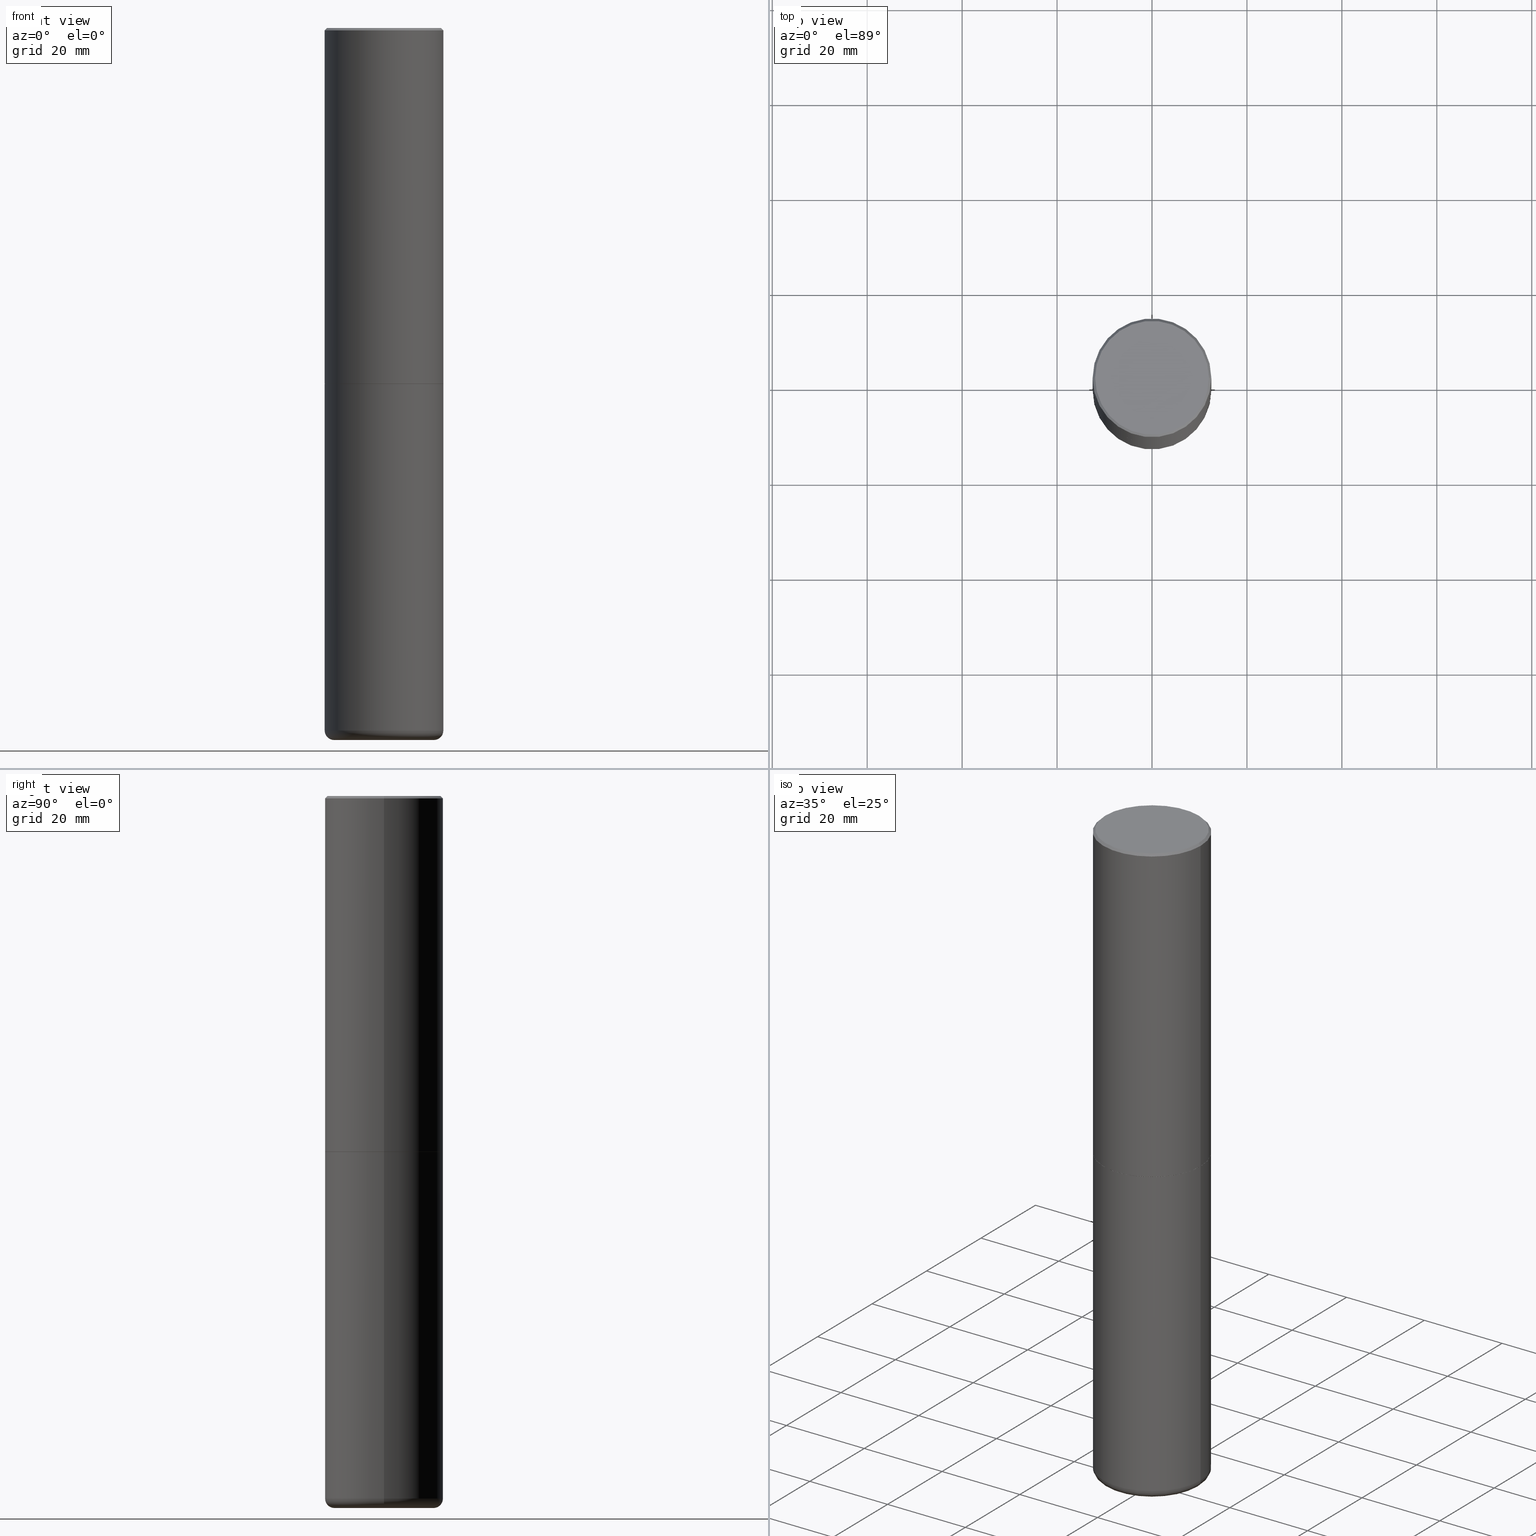
[diagram: canonical four-view strip — front | top / right | iso, engineering-drawing reading convention]
A machine part, canonical four-view strip (front | top / right | iso — engineering-drawing reading convention). The complete STEP part file that produces these views, byte-faithful:
ISO-10303-21;
HEADER;
FILE_DESCRIPTION (( 'STEP AP203' ),
    '1' );
FILE_NAME ('74576.STEP',
    '2024-03-06T15:31:58',
    ( '' ),
    ( '' ),
    'SwSTEP 2.0',
    'SolidWorks 2023',
    '' );
FILE_SCHEMA (( 'CONFIG_CONTROL_DESIGN' ));
ENDSEC;

DATA;
#1 = ADVANCED_FACE ( 'NONE', ( #221 ), #219, .T. ) ;
#2 = DIRECTION ( 'NONE',  ( -2.445468806185136597E-29, 3.491481338843145583E-15, 1.000000000000000000 ) ) ;
#3 = DIRECTION ( 'NONE',  ( -1.000000000000000000, 6.982962677686265922E-15, -4.876176775795935793E-29 ) ) ;
#4 =( GEOMETRIC_REPRESENTATION_CONTEXT ( 3 ) GLOBAL_UNCERTAINTY_ASSIGNED_CONTEXT ( ( #103 ) ) GLOBAL_UNIT_ASSIGNED_CONTEXT ( ( #272, #370, #204 ) ) REPRESENTATION_CONTEXT ( 'NONE', 'WORKASPACE' ) );
#5 = DIRECTION ( 'NONE',  ( 2.438088387897960049E-29, -3.491481338843145188E-15, -1.000000000000000000 ) ) ;
#6 = ORIENTED_EDGE ( 'NONE', *, *, #50, .F. ) ;
#7 = CC_DESIGN_PERSON_AND_ORGANIZATION_ASSIGNMENT ( #323, #47, ( #28 ) ) ;
#8 = CIRCLE ( 'NONE', #281, 0.4921500000000003094 ) ;
#9 = CARTESIAN_POINT ( 'NONE',  ( 4.890937612370299433E-31, -6.982962677686328587E-17, -0.02000000000000010797 ) ) ;
#10 = VERTEX_POINT ( 'NONE', #86 ) ;
#11 = CARTESIAN_POINT ( 'NONE',  ( 4.071020515907357082E-45, -5.812338364483744108E-31, -1.664719871139160491E-16 ) ) ;
#12 = APPLICATION_CONTEXT ( 'configuration controlled 3d designs of mechanical parts and assemblies' ) ;
#13 = ORIENTED_EDGE ( 'NONE', *, *, #299, .F. ) ;
#14 = DIRECTION ( 'NONE',  ( -2.445468806185136877E-29, 3.491481338843145188E-15, 1.000000000000000000 ) ) ;
#15 = VECTOR ( 'NONE', #215, 39.37007874015748143 ) ;
#16 = CALENDAR_DATE ( 2024, 6, 3 ) ;
#17 = DIRECTION ( 'NONE',  ( 1.000000000000000000, -6.982962677686265922E-15, 0.000000000000000000 ) ) ;
#18 = PERSON_AND_ORGANIZATION ( #94, #240 ) ;
#19 = DIRECTION ( 'NONE',  ( 7.105427357601001859E-15, 1.000000000000000000, -3.491481338843145583E-15 ) ) ;
#20 = COORDINATED_UNIVERSAL_TIME_OFFSET ( 5, 0, .BEHIND. ) ;
#21 = ORIENTED_EDGE ( 'NONE', *, *, #66, .T. ) ;
#22 = CIRCLE ( 'NONE', #343, 0.07870000000000024198 ) ;
#23 = PERSON_AND_ORGANIZATION ( #94, #240 ) ;
#24 = ORIENTED_EDGE ( 'NONE', *, *, #310, .T. ) ;
#25 = ORIENTED_EDGE ( 'NONE', *, *, #411, .T. ) ;
#26 = DIRECTION ( 'NONE',  ( -2.445468806185136597E-29, 3.491481338843145583E-15, 1.000000000000000000 ) ) ;
#27 = AXIS2_PLACEMENT_3D ( 'NONE', #65, #302, #3 ) ;
#28 = SECURITY_CLASSIFICATION ( '', '', #117 ) ;
#29 = DIRECTION ( 'NONE',  ( -2.445468806185136597E-29, 3.491481338843145583E-15, 1.000000000000000000 ) ) ;
#30 = DIRECTION ( 'NONE',  ( -2.445468806185136597E-29, 3.491481338843145583E-15, 1.000000000000000000 ) ) ;
#31 = LINE ( 'NONE', #192, #292 ) ;
#32 = CIRCLE ( 'NONE', #309, 0.4721500000000000696 ) ;
#33 = DIRECTION ( 'NONE',  ( 2.445468806185136597E-29, -3.491481338843145583E-15, -1.000000000000000000 ) ) ;
#34 = ORIENTED_EDGE ( 'NONE', *, *, #348, .T. ) ;
#35 = CARTESIAN_POINT ( 'NONE',  ( 4.890937612370299433E-31, -6.982962677686328587E-17, -0.02000000000000010797 ) ) ;
#36 = VERTEX_POINT ( 'NONE', #390 ) ;
#37 = PRODUCT ( '74576', '74576', '', ( #282 ) ) ;
#38 = CARTESIAN_POINT ( 'NONE',  ( 0.4911499999999999755, -1.373897906834776478E-14, -2.952700000000000102 ) ) ;
#39 = ORIENTED_EDGE ( 'NONE', *, *, #203, .T. ) ;
#40 = AXIS2_PLACEMENT_3D ( 'NONE', #305, #228, #230 ) ;
#41 = CC_DESIGN_APPROVAL ( #95, ( #188 ) ) ;
#42 = CARTESIAN_POINT ( 'NONE',  ( 3.297005828269570364E-15, 0.4721500000000000696, -1.731738907691749419E-15 ) ) ;
#43 = VERTEX_POINT ( 'NONE', #356 ) ;
#44 = ADVANCED_BREP_SHAPE_REPRESENTATION ( '74576', ( #160, #164, #201 ), #4 ) ;
#45 = DIRECTION ( 'NONE',  ( 1.000000000000000000, -6.982962677686266711E-15, 4.875605319575677862E-29 ) ) ;
#46 = ORIENTED_EDGE ( 'NONE', *, *, #111, .F. ) ;
#47 = PERSON_AND_ORGANIZATION_ROLE ( 'classification_officer' ) ;
#48 = CARTESIAN_POINT ( 'NONE',  ( 1.424925763987955342E-28, -2.034416346517123863E-14, -5.826799999999999535 ) ) ;
#49 = AXIS2_PLACEMENT_3D ( 'NONE', #362, #30, #96 ) ;
#50 = EDGE_CURVE ( 'NONE', #338, #252, #179, .T. ) ;
#51 = APPROVAL_STATUS ( 'not_yet_approved' ) ;
#52 = CARTESIAN_POINT ( 'NONE',  ( 0.4134499999999999287, -2.323126938426062930E-14, -5.826799999999999535 ) ) ;
#53 = APPROVAL_ROLE ( '' ) ;
#54 = ORIENTED_EDGE ( 'NONE', *, *, #379, .F. ) ;
#55 = EDGE_CURVE ( 'NONE', #273, #338, #8, .T. ) ;
#56 = DIRECTION ( 'NONE',  ( 1.000000000000000000, -6.982962677686265922E-15, 0.000000000000000000 ) ) ;
#57 = VECTOR ( 'NONE', #400, 39.37007874015748143 ) ;
#58 = ORIENTED_EDGE ( 'NONE', *, *, #340, .T. ) ;
#59 = PRODUCT_DEFINITION_SHAPE ( 'NONE', 'NONE',  #235 ) ;
#60 = DIRECTION ( 'NONE',  ( 1.000000000000000000, -6.982962677686261977E-15, 0.000000000000000000 ) ) ;
#61 = DIRECTION ( 'NONE',  ( -2.445468806185136597E-29, 3.491481338843145583E-15, 1.000000000000000000 ) ) ;
#62 = LOCAL_TIME ( 10, 31, 58.00000000000000000, #225 ) ;
#63 = DIRECTION ( 'NONE',  ( -2.445468806185136597E-29, 3.491481338843145583E-15, 1.000000000000000000 ) ) ;
#64 = CC_DESIGN_PERSON_AND_ORGANIZATION_ASSIGNMENT ( #385, #88, ( #37 ) ) ;
#65 = CARTESIAN_POINT ( 'NONE',  ( 1.444171603492632270E-28, -2.061894304653819197E-14, -5.905499999999999972 ) ) ;
#66 = EDGE_CURVE ( 'NONE', #262, #120, #232, .T. ) ;
#67 = DIRECTION ( 'NONE',  ( -2.445468806185136597E-29, 3.491481338843145583E-15, 1.000000000000000000 ) ) ;
#68 = ADVANCED_FACE ( 'NONE', ( #358 ), #388, .T. ) ;
#69 = CARTESIAN_POINT ( 'NONE',  ( 7.220735744022852519E-29, -1.030929694920215502E-14, -2.952700000000000102 ) ) ;
#70 = VECTOR ( 'NONE', #14, 39.37007874015748143 ) ;
#71 = DIRECTION ( 'NONE',  ( -2.445468806185136597E-29, 3.491481338843145583E-15, 1.000000000000000000 ) ) ;
#72 = EDGE_CURVE ( 'NONE', #242, #338, #415, .T. ) ;
#73 = EDGE_LOOP ( 'NONE', ( #399, #138 ) ) ;
#74 = FACE_OUTER_BOUND ( 'NONE', #346, .T. ) ;
#75 = AXIS2_PLACEMENT_3D ( 'NONE', #69, #207, #168 ) ;
#76 = ORIENTED_EDGE ( 'NONE', *, *, #72, .T. ) ;
#77 = AXIS2_PLACEMENT_3D ( 'NONE', #333, #29, #335 ) ;
#78 = DIRECTION ( 'NONE',  ( -1.000000000000000000, 6.982962677686265922E-15, -4.876176775795935793E-29 ) ) ;
#79 = ORIENTED_EDGE ( 'NONE', *, *, #199, .T. ) ;
#80 = PERSON_AND_ORGANIZATION ( #94, #240 ) ;
#81 = ORIENTED_EDGE ( 'NONE', *, *, #379, .T. ) ;
#82 = APPROVAL_STATUS ( 'not_yet_approved' ) ;
#83 = ORIENTED_EDGE ( 'NONE', *, *, #55, .T. ) ;
#84 = AXIS2_PLACEMENT_3D ( 'NONE', #93, #61, #268 ) ;
#85 = COORDINATED_UNIVERSAL_TIME_OFFSET ( 5, 0, .BEHIND. ) ;
#86 = CARTESIAN_POINT ( 'NONE',  ( -0.4921500000000000874, -1.684722739112790810E-14, -5.826799999999999535 ) ) ;
#87 = ORIENTED_EDGE ( 'NONE', *, *, #121, .T. ) ;
#88 = PERSON_AND_ORGANIZATION_ROLE ( 'design_owner' ) ;
#89 = EDGE_LOOP ( 'NONE', ( #328, #110 ) ) ;
#90 = PLANE ( 'NONE',  #304 ) ;
#91 = ADVANCED_FACE ( 'NONE', ( #256 ), #322, .T. ) ;
#92 = DIRECTION ( 'NONE',  ( -2.445468806185136597E-29, 3.491481338843145583E-15, 1.000000000000000000 ) ) ;
#93 = CARTESIAN_POINT ( 'NONE',  ( 7.220735744022852519E-29, -1.030929694920215502E-14, -2.952700000000000102 ) ) ;
#94 = PERSON ( 'UNSPECIFIED', 'UNSPECIFIED', 'UNSPECIFIED', ('UNSPECIFIED'), ('UNSPECIFIED'), ('UNSPECIFIED') ) ;
#95 = APPROVAL ( #177, 'UNSPECIFIED' ) ;
#96 = DIRECTION ( 'NONE',  ( 1.000000000000000000, -6.982962677686265922E-15, 0.000000000000000000 ) ) ;
#97 = CARTESIAN_POINT ( 'NONE',  ( 7.220735744022852519E-29, -1.030929694920215502E-14, -2.952700000000000102 ) ) ;
#98 = DIRECTION ( 'NONE',  ( 2.445468806185136597E-29, -3.491481338843145583E-15, -1.000000000000000000 ) ) ;
#99 = DIRECTION ( 'NONE',  ( -2.445468806185136597E-29, 3.491481338843145583E-15, 1.000000000000000000 ) ) ;
#100 = AXIS2_PLACEMENT_3D ( 'NONE', #190, #185, #329 ) ;
#101 = EDGE_LOOP ( 'NONE', ( #54, #142, #79, #380 ) ) ;
#102 = DIRECTION ( 'NONE',  ( -2.445468806185136597E-29, 3.491481338843145583E-15, 1.000000000000000000 ) ) ;
#103 = UNCERTAINTY_MEASURE_WITH_UNIT (LENGTH_MEASURE( 1.000000000000000082E-05 ), #272, 'distance_accuracy_value', 'NONE');
#104 = DIRECTION ( 'NONE',  ( 1.000000000000000000, -6.982962677686266711E-15, 4.875605319575677862E-29 ) ) ;
#105 = FACE_OUTER_BOUND ( 'NONE', #410, .T. ) ;
#106 = AXIS2_PLACEMENT_3D ( 'NONE', #277, #102, #396 ) ;
#107 = ORIENTED_EDGE ( 'NONE', *, *, #148, .F. ) ;
#108 = CC_DESIGN_APPROVAL ( #206, ( #235 ) ) ;
#109 = DATE_AND_TIME ( #181, #233 ) ;
#110 = ORIENTED_EDGE ( 'NONE', *, *, #121, .F. ) ;
#111 = EDGE_CURVE ( 'NONE', #120, #10, #369, .T. ) ;
#112 = VERTEX_POINT ( 'NONE', #286 ) ;
#113 = EDGE_CURVE ( 'NONE', #253, #10, #22, .T. ) ;
#114 = ORIENTED_EDGE ( 'NONE', *, *, #55, .F. ) ;
#115 = CLOSED_SHELL ( 'NONE', ( #316, #266, #158, #68, #167, #224 ) ) ;
#116 = CIRCLE ( 'NONE', #248, 0.4921499999999999764 ) ;
#117 = SECURITY_CLASSIFICATION_LEVEL ( 'unclassified' ) ;
#118 = EDGE_LOOP ( 'NONE', ( #314, #39, #374, #342 ) ) ;
#119 = PERSON_AND_ORGANIZATION ( #94, #240 ) ;
#120 = VERTEX_POINT ( 'NONE', #288 ) ;
#121 = EDGE_CURVE ( 'NONE', #253, #262, #351, .T. ) ;
#122 = CARTESIAN_POINT ( 'NONE',  ( -0.4911499999999999755, -6.819466302516422338E-15, -2.952700000000000102 ) ) ;
#123 = CLOSED_SHELL ( 'NONE', ( #172, #1, #414, #291, #91, #127, #259, #347 ) ) ;
#124 = CIRCLE ( 'NONE', #416, 0.4911499999999999755 ) ;
#125 = APPROVAL_PERSON_ORGANIZATION ( #119, #243, #290 ) ;
#126 = LINE ( 'NONE', #265, #269 ) ;
#127 = ADVANCED_FACE ( 'NONE', ( #417 ), #187, .T. ) ;
#128 = PLANE ( 'NONE',  #327 ) ;
#129 = CC_DESIGN_PERSON_AND_ORGANIZATION_ASSIGNMENT ( #287, #220, ( #188 ) ) ;
#130 = CARTESIAN_POINT ( 'NONE',  ( 0.4921499999999999764, -1.374596203102545079E-14, -2.952700000000000102 ) ) ;
#131 = AXIS2_PLACEMENT_3D ( 'NONE', #394, #67, #198 ) ;
#132 = FACE_OUTER_BOUND ( 'NONE', #372, .T. ) ;
#133 = CARTESIAN_POINT ( 'NONE',  ( 4.890937612370299433E-31, -6.982962677686328587E-17, -0.02000000000000010797 ) ) ;
#134 = LENGTH_MEASURE_WITH_UNIT ( LENGTH_MEASURE( 0.02539999999999999897 ), #306 );
#135 = CYLINDRICAL_SURFACE ( 'NONE', #106, 0.4921499999999999764 ) ;
#136 = CIRCLE ( 'NONE', #156, 0.4134499999999999287 ) ;
#137 = DIRECTION ( 'NONE',  ( -2.445468806185136597E-29, 3.491481338843145583E-15, 1.000000000000000000 ) ) ;
#138 = ORIENTED_EDGE ( 'NONE', *, *, #289, .T. ) ;
#139 = DIRECTION ( 'NONE',  ( 1.000000000000000000, -6.982962677686265922E-15, 0.000000000000000000 ) ) ;
#140 = EDGE_CURVE ( 'NONE', #338, #273, #337, .T. ) ;
#141 = FACE_OUTER_BOUND ( 'NONE', #118, .T. ) ;
#142 = ORIENTED_EDGE ( 'NONE', *, *, #364, .T. ) ;
#143 = CONICAL_SURFACE ( 'NONE', #170, 0.4921499999999999764, 0.7853981633974479459 ) ;
#144 = PRODUCT_RELATED_PRODUCT_CATEGORY ( 'detail', '', ( #37 ) ) ;
#145 = DIRECTION ( 'NONE',  ( -2.445468806185136597E-29, 3.491481338843145583E-15, 1.000000000000000000 ) ) ;
#146 = COORDINATED_UNIVERSAL_TIME_OFFSET ( 5, 0, .BEHIND. ) ;
#147 = DIRECTION ( 'NONE',  ( -1.000000000000000000, 7.105427357600995548E-15, 0.000000000000000000 ) ) ;
#148 = EDGE_CURVE ( 'NONE', #242, #284, #124, .T. ) ;
#149 = DATE_AND_TIME ( #258, #275 ) ;
#150 = ORIENTED_EDGE ( 'NONE', *, *, #199, .F. ) ;
#151 = AXIS2_PLACEMENT_3D ( 'NONE', #52, #226, #413 ) ;
#152 = DIRECTION ( 'NONE',  ( 1.000000000000000000, 0.000000000000000000, 0.000000000000000000 ) ) ;
#153 = DIRECTION ( 'NONE',  ( -2.445468806185136877E-29, 3.491481338843145188E-15, 1.000000000000000000 ) ) ;
#154 = VERTEX_POINT ( 'NONE', #130 ) ;
#155 = DIRECTION ( 'NONE',  ( 1.000000000000000000, -6.982962677686268288E-15, 0.000000000000000000 ) ) ;
#156 = AXIS2_PLACEMENT_3D ( 'NONE', #165, #308, #373 ) ;
#157 = CARTESIAN_POINT ( 'NONE',  ( -0.4921499999999999764, 3.366835455046432478E-15, -0.02000000000000010797 ) ) ;
#158 = ADVANCED_FACE ( 'NONE', ( #191 ), #90, .F. ) ;
#159 = DIRECTION ( 'NONE',  ( -0.7071067811865472397, 2.468850131082253905E-15, -0.7071067811865477948 ) ) ;
#160 = MANIFOLD_SOLID_BREP ( 'Body-Move/Copy2[1]', #115 ) ;
#161 = DIRECTION ( 'NONE',  ( -2.438088387897960049E-29, 3.491481338843145188E-15, 1.000000000000000000 ) ) ;
#162 = VECTOR ( 'NONE', #212, 39.37007874015748143 ) ;
#163 = CARTESIAN_POINT ( 'NONE',  ( 7.218290275216666916E-29, -1.030580546786331359E-14, -2.951700000000000212 ) ) ;
#164 = MANIFOLD_SOLID_BREP ( 'Body-Move/Copy2[2]', #123 ) ;
#165 = CARTESIAN_POINT ( 'NONE',  ( 1.444171603492632270E-28, -2.061894304653819197E-14, -5.905499999999999972 ) ) ;
#166 = ORIENTED_EDGE ( 'NONE', *, *, #148, .T. ) ;
#167 = ADVANCED_FACE ( 'NONE', ( #391 ), #210, .T. ) ;
#168 = DIRECTION ( 'NONE',  ( 1.000000000000000000, -6.982962677686265922E-15, 0.000000000000000000 ) ) ;
#169 = VECTOR ( 'NONE', #313, 39.37007874015748143 ) ;
#170 = AXIS2_PLACEMENT_3D ( 'NONE', #35, #98, #202 ) ;
#171 = ORIENTED_EDGE ( 'NONE', *, *, #299, .T. ) ;
#172 = ADVANCED_FACE ( 'NONE', ( #359 ), #409, .T. ) ;
#173 = LINE ( 'NONE', #368, #162 ) ;
#174 = EDGE_LOOP ( 'NONE', ( #6, #278, #25, #312 ) ) ;
#175 = LINE ( 'NONE', #315, #70 ) ;
#176 = ORIENTED_EDGE ( 'NONE', *, *, #66, .F. ) ;
#177 = APPROVAL_STATUS ( 'not_yet_approved' ) ;
#178 = AXIS2_PLACEMENT_3D ( 'NONE', #182, #223, #184 ) ;
#179 = LINE ( 'NONE', #293, #194 ) ;
#180 = APPROVAL_PERSON_ORGANIZATION ( #23, #206, #325 ) ;
#181 = CALENDAR_DATE ( 2024, 6, 3 ) ;
#182 = CARTESIAN_POINT ( 'NONE',  ( 0.000000000000000000, 0.000000000000000000, 0.000000000000000000 ) ) ;
#183 = PERSON_AND_ORGANIZATION ( #94, #240 ) ;
#184 = DIRECTION ( 'NONE',  ( 1.000000000000000000, -6.982962677686265922E-15, 4.876176775795935793E-29 ) ) ;
#185 = DIRECTION ( 'NONE',  ( -2.445468806185136597E-29, 3.491481338843145583E-15, 1.000000000000000000 ) ) ;
#186 = CC_DESIGN_DATE_AND_TIME_ASSIGNMENT ( #109, #294, ( #235 ) ) ;
#187 = CONICAL_SURFACE ( 'NONE', #393, 0.4911499999999999755, 0.7853981633977213939 ) ;
#188 = PRODUCT_DEFINITION_FORMATION_WITH_SPECIFIED_SOURCE ( 'ANY', '', #37, .NOT_KNOWN. ) ;
#189 = APPLICATION_PROTOCOL_DEFINITION ( 'international standard', 'config_control_design', 1994, #12 ) ;
#190 = CARTESIAN_POINT ( 'NONE',  ( 0.000000000000000000, 0.000000000000000000, 0.000000000000000000 ) ) ;
#191 = FACE_OUTER_BOUND ( 'NONE', #73, .T. ) ;
#192 = CARTESIAN_POINT ( 'NONE',  ( -0.4921499999999999764, 3.366835455046432478E-15, -0.02000000000000010797 ) ) ;
#193 = EDGE_CURVE ( 'NONE', #43, #252, #31, .T. ) ;
#194 = VECTOR ( 'NONE', #153, 39.37007874015748143 ) ;
#195 = LOCAL_TIME ( 10, 31, 58.00000000000000000, #146 ) ;
#196 = FACE_OUTER_BOUND ( 'NONE', #89, .T. ) ;
#197 = CARTESIAN_POINT ( 'NONE',  ( 1.444171603492632270E-28, -2.061894304653819197E-14, -5.905499999999999972 ) ) ;
#198 = DIRECTION ( 'NONE',  ( 1.000000000000000000, -6.982962677686263555E-15, 4.883557194083111219E-29 ) ) ;
#199 = EDGE_CURVE ( 'NONE', #36, #252, #398, .T. ) ;
#200 = AXIS2_PLACEMENT_3D ( 'NONE', #344, #137, #311 ) ;
#201 = AXIS2_PLACEMENT_3D ( 'NONE', #378, #407, #152 ) ;
#202 = DIRECTION ( 'NONE',  ( -1.000000000000000000, 6.982962677686265922E-15, 0.000000000000000000 ) ) ;
#203 = EDGE_CURVE ( 'NONE', #10, #205, #126, .T. ) ;
#204 =( NAMED_UNIT ( * ) SI_UNIT ( $, .STERADIAN. ) SOLID_ANGLE_UNIT ( ) );
#205 = VERTEX_POINT ( 'NONE', #331 ) ;
#206 = APPROVAL ( #51, 'UNSPECIFIED' ) ;
#207 = DIRECTION ( 'NONE',  ( -2.445468806185136597E-29, 3.491481338843145583E-15, 1.000000000000000000 ) ) ;
#208 = ORIENTED_EDGE ( 'NONE', *, *, #289, .F. ) ;
#209 = CARTESIAN_POINT ( 'NONE',  ( 1.424925763987955342E-28, -2.034416346517123863E-14, -5.826799999999999535 ) ) ;
#210 = TOROIDAL_SURFACE ( 'NONE', #40, 0.4134499999999999287, 0.07870000000000024198 ) ;
#211 = ORIENTED_EDGE ( 'NONE', *, *, #193, .T. ) ;
#212 = DIRECTION ( 'NONE',  ( 0.7071067811867406405, -2.468850131084279700E-15, 0.7071067811863543939 ) ) ;
#213 = ORIENTED_EDGE ( 'NONE', *, *, #411, .F. ) ;
#214 = APPROVAL_DATE_TIME ( #321, #95 ) ;
#215 = DIRECTION ( 'NONE',  ( -0.7071067811867406405, 7.493145998871051513E-15, 0.7071067811863543939 ) ) ;
#216 = EDGE_CURVE ( 'NONE', #252, #36, #326, .T. ) ;
#217 = APPLICATION_PROTOCOL_DEFINITION ( 'international standard', 'config_control_design', 1994, #367 ) ;
#218 = AXIS2_PLACEMENT_3D ( 'NONE', #48, #320, #17 ) ;
#219 = CYLINDRICAL_SURFACE ( 'NONE', #178, 0.4921500000000000874 ) ;
#220 = PERSON_AND_ORGANIZATION_ROLE ( 'creator' ) ;
#221 = FACE_OUTER_BOUND ( 'NONE', #355, .T. ) ;
#222 = PERSON_AND_ORGANIZATION_ROLE ( 'creator' ) ;
#223 = DIRECTION ( 'NONE',  ( -2.445468806185136597E-29, 3.491481338843145583E-15, 1.000000000000000000 ) ) ;
#224 = ADVANCED_FACE ( 'NONE', ( #196 ), #418, .T. ) ;
#225 = COORDINATED_UNIVERSAL_TIME_OFFSET ( 5, 0, .BEHIND. ) ;
#226 = DIRECTION ( 'NONE',  ( -6.982962677686266711E-15, -1.000000000000000000, 3.491481338843145583E-15 ) ) ;
#227 = AXIS2_PLACEMENT_3D ( 'NONE', #197, #2, #60 ) ;
#228 = DIRECTION ( 'NONE',  ( -2.445468806185136597E-29, 3.491481338843145583E-15, 1.000000000000000000 ) ) ;
#229 = CC_DESIGN_DATE_AND_TIME_ASSIGNMENT ( #149, #412, ( #28 ) ) ;
#230 = DIRECTION ( 'NONE',  ( 1.000000000000000000, -6.982962677686263555E-15, 4.883557194083111219E-29 ) ) ;
#231 = CARTESIAN_POINT ( 'NONE',  ( 7.220735744022852519E-29, -1.030929694920215502E-14, -2.952700000000000102 ) ) ;
#232 = CIRCLE ( 'NONE', #151, 0.07870000000000024198 ) ;
#233 = LOCAL_TIME ( 10, 31, 58.00000000000000000, #383 ) ;
#234 = FACE_OUTER_BOUND ( 'NONE', #250, .T. ) ;
#235 = PRODUCT_DEFINITION ( 'UNKNOWN', '', #188, #237 ) ;
#236 = DIRECTION ( 'NONE',  ( 1.000000000000000000, -6.982962677686268288E-15, 0.000000000000000000 ) ) ;
#237 = DESIGN_CONTEXT ( 'detailed design', #12, 'design' ) ;
#238 = CARTESIAN_POINT ( 'NONE',  ( -0.4921500000000003094, -1.690881473276751010E-15, -2.951700000000000212 ) ) ;
#239 = AXIS2_PLACEMENT_3D ( 'NONE', #9, #33, #402 ) ;
#240 = ORGANIZATION ( 'UNSPECIFIED', 'UNSPECIFIED', '' ) ;
#241 = FACE_OUTER_BOUND ( 'NONE', #101, .T. ) ;
#242 = VERTEX_POINT ( 'NONE', #301 ) ;
#243 = APPROVAL ( #82, 'UNSPECIFIED' ) ;
#244 = DIMENSIONAL_EXPONENTS ( 1.000000000000000000, 0.000000000000000000, 0.000000000000000000, 0.000000000000000000, 0.000000000000000000, 0.000000000000000000, 0.000000000000000000 ) ;
#245 = EDGE_CURVE ( 'NONE', #154, #205, #389, .T. ) ;
#246 = CARTESIAN_POINT ( 'NONE',  ( 4.071020515907357082E-45, -5.812338364483744108E-31, -1.664719871139160491E-16 ) ) ;
#247 = EDGE_LOOP ( 'NONE', ( #405, #87, #21, #13 ) ) ;
#248 = AXIS2_PLACEMENT_3D ( 'NONE', #209, #249, #139 ) ;
#249 = DIRECTION ( 'NONE',  ( -2.445468806185136597E-29, 3.491481338843145583E-15, 1.000000000000000000 ) ) ;
#250 = EDGE_LOOP ( 'NONE', ( #280, #107 ) ) ;
#251 = CALENDAR_DATE ( 2024, 6, 3 ) ;
#252 = VERTEX_POINT ( 'NONE', #157 ) ;
#253 = VERTEX_POINT ( 'NONE', #300 ) ;
#254 = DATE_AND_TIME ( #251, #195 ) ;
#255 = TOROIDAL_SURFACE ( 'NONE', #131, 0.4134499999999999287, 0.07870000000000024198 ) ;
#256 = FACE_OUTER_BOUND ( 'NONE', #174, .T. ) ;
#257 = CC_DESIGN_SECURITY_CLASSIFICATION ( #28, ( #188 ) ) ;
#258 = CALENDAR_DATE ( 2024, 6, 3 ) ;
#259 = ADVANCED_FACE ( 'NONE', ( #234 ), #128, .F. ) ;
#260 = ORIENTED_EDGE ( 'NONE', *, *, #216, .T. ) ;
#261 = DATE_AND_TIME ( #318, #62 ) ;
#262 = VERTEX_POINT ( 'NONE', #392 ) ;
#263 = CARTESIAN_POINT ( 'NONE',  ( 0.000000000000000000, 0.000000000000000000, 0.000000000000000000 ) ) ;
#264 = AXIS2_PLACEMENT_3D ( 'NONE', #11, #99, #45 ) ;
#265 = CARTESIAN_POINT ( 'NONE',  ( -0.4921499999999999764, 3.496936074043332897E-15, -2.420853904668951509E-29 ) ) ;
#266 = ADVANCED_FACE ( 'NONE', ( #132 ), #255, .T. ) ;
#267 = DIRECTION ( 'NONE',  ( 1.000000000000000000, -6.982962677686265922E-15, 4.876176775795935793E-29 ) ) ;
#268 = DIRECTION ( 'NONE',  ( 1.000000000000000000, -6.982962677686268288E-15, 0.000000000000000000 ) ) ;
#269 = VECTOR ( 'NONE', #336, 39.37007874015748143 ) ;
#270 = CARTESIAN_POINT ( 'NONE',  ( 0.4921500000000003094, -1.374247054968661252E-14, -2.951700000000000212 ) ) ;
#271 = DIRECTION ( 'NONE',  ( 1.000000000000000000, -6.982962677686265922E-15, 0.000000000000000000 ) ) ;
#272 =( CONVERSION_BASED_UNIT ( 'INCH', #134 ) LENGTH_UNIT ( ) NAMED_UNIT ( #244 ) );
#273 = VERTEX_POINT ( 'NONE', #270 ) ;
#274 = AXIS2_PLACEMENT_3D ( 'NONE', #163, #330, #271 ) ;
#275 = LOCAL_TIME ( 10, 31, 58.00000000000000000, #20 ) ;
#276 = DIRECTION ( 'NONE',  ( 2.438088387897960049E-29, -3.491481338843145188E-15, -1.000000000000000000 ) ) ;
#277 = CARTESIAN_POINT ( 'NONE',  ( 0.000000000000000000, 0.000000000000000000, 0.000000000000000000 ) ) ;
#278 = ORIENTED_EDGE ( 'NONE', *, *, #140, .T. ) ;
#279 = LINE ( 'NONE', #341, #57 ) ;
#280 = ORIENTED_EDGE ( 'NONE', *, *, #310, .F. ) ;
#281 = AXIS2_PLACEMENT_3D ( 'NONE', #353, #295, #56 ) ;
#282 = MECHANICAL_CONTEXT ( 'NONE', #367, 'mechanical' ) ;
#283 = APPROVAL_PERSON_ORGANIZATION ( #18, #95, #53 ) ;
#284 = VERTEX_POINT ( 'NONE', #38 ) ;
#285 = APPROVAL_DATE_TIME ( #254, #206 ) ;
#286 = CARTESIAN_POINT ( 'NONE',  ( 0.4721500000000000696, -3.342703923013975763E-15, -1.664719871138928270E-16 ) ) ;
#287 = PERSON_AND_ORGANIZATION ( #94, #240 ) ;
#288 = CARTESIAN_POINT ( 'NONE',  ( 0.4921500000000000874, -2.378082854699453914E-14, -5.826799999999999535 ) ) ;
#289 = EDGE_CURVE ( 'NONE', #205, #154, #317, .T. ) ;
#290 = APPROVAL_ROLE ( '' ) ;
#291 = ADVANCED_FACE ( 'NONE', ( #74 ), #332, .T. ) ;
#292 = VECTOR ( 'NONE', #159, 39.37007874015748143 ) ;
#293 = CARTESIAN_POINT ( 'NONE',  ( -0.4921500000000000874, 3.496936074043333686E-15, -2.420853904668952350E-29 ) ) ;
#294 = DATE_TIME_ROLE ( 'creation_date' ) ;
#295 = DIRECTION ( 'NONE',  ( -2.445468806185136597E-29, 3.491481338843145583E-15, 1.000000000000000000 ) ) ;
#296 = EDGE_LOOP ( 'NONE', ( #24, #76, #114, #377 ) ) ;
#297 = DIRECTION ( 'NONE',  ( 1.000000000000000000, -6.982962677686265922E-15, 0.000000000000000000 ) ) ;
#298 = AXIS2_PLACEMENT_3D ( 'NONE', #133, #26, #297 ) ;
#299 = EDGE_CURVE ( 'NONE', #10, #120, #116, .T. ) ;
#300 = CARTESIAN_POINT ( 'NONE',  ( -0.4134499999999999287, -1.726421574833298258E-14, -5.905499999999999972 ) ) ;
#301 = CARTESIAN_POINT ( 'NONE',  ( -0.4911499999999999755, -6.814167848168199148E-15, -2.952700000000000102 ) ) ;
#302 = DIRECTION ( 'NONE',  ( 2.438088387897960049E-29, -3.491481338843145188E-15, -1.000000000000000000 ) ) ;
#303 = EDGE_CURVE ( 'NONE', #262, #253, #136, .T. ) ;
#304 = AXIS2_PLACEMENT_3D ( 'NONE', #231, #5, #360 ) ;
#305 = CARTESIAN_POINT ( 'NONE',  ( 1.424925763987955342E-28, -2.034416346517123863E-14, -5.826799999999999535 ) ) ;
#306 =( LENGTH_UNIT ( ) NAMED_UNIT ( * ) SI_UNIT ( $, .METRE. ) );
#307 = ORIENTED_EDGE ( 'NONE', *, *, #340, .F. ) ;
#308 = DIRECTION ( 'NONE',  ( -2.445468806185136597E-29, 3.491481338843145583E-15, 1.000000000000000000 ) ) ;
#309 = AXIS2_PLACEMENT_3D ( 'NONE', #246, #71, #104 ) ;
#310 = EDGE_CURVE ( 'NONE', #284, #242, #382, .T. ) ;
#311 = DIRECTION ( 'NONE',  ( 1.000000000000000000, -6.982962677686268288E-15, 0.000000000000000000 ) ) ;
#312 = ORIENTED_EDGE ( 'NONE', *, *, #216, .F. ) ;
#313 = DIRECTION ( 'NONE',  ( 0.7071067811865472397, -7.319954787623254468E-15, -0.7071067811865477948 ) ) ;
#314 = ORIENTED_EDGE ( 'NONE', *, *, #111, .T. ) ;
#315 = CARTESIAN_POINT ( 'NONE',  ( 0.4921500000000000874, -3.436665081823296565E-15, 2.399810400207970163E-29 ) ) ;
#316 = ADVANCED_FACE ( 'NONE', ( #141 ), #135, .T. ) ;
#317 = CIRCLE ( 'NONE', #75, 0.4921499999999999764 ) ;
#318 = CALENDAR_DATE ( 2024, 6, 3 ) ;
#319 = CC_DESIGN_APPROVAL ( #243, ( #28 ) ) ;
#320 = DIRECTION ( 'NONE',  ( -2.445468806185136597E-29, 3.491481338843145583E-15, 1.000000000000000000 ) ) ;
#321 = DATE_AND_TIME ( #16, #352 ) ;
#322 = CYLINDRICAL_SURFACE ( 'NONE', #375, 0.4921500000000000874 ) ;
#323 = PERSON_AND_ORGANIZATION ( #94, #240 ) ;
#324 = ORIENTED_EDGE ( 'NONE', *, *, #203, .F. ) ;
#325 = APPROVAL_ROLE ( '' ) ;
#326 = CIRCLE ( 'NONE', #77, 0.4921499999999999764 ) ;
#327 = AXIS2_PLACEMENT_3D ( 'NONE', #366, #161, #267 ) ;
#328 = ORIENTED_EDGE ( 'NONE', *, *, #303, .F. ) ;
#329 = DIRECTION ( 'NONE',  ( 1.000000000000000000, -6.982962677686265922E-15, 4.876176775795935793E-29 ) ) ;
#330 = DIRECTION ( 'NONE',  ( -2.445468806185136597E-29, 3.491481338843145583E-15, 1.000000000000000000 ) ) ;
#331 = CARTESIAN_POINT ( 'NONE',  ( -0.4921499999999999764, -1.182979413314336550E-14, -2.952700000000000102 ) ) ;
#332 = CONICAL_SURFACE ( 'NONE', #239, 0.4921499999999999764, 0.7853981633974479459 ) ;
#333 = CARTESIAN_POINT ( 'NONE',  ( 4.890937612370299433E-31, -6.982962677686328587E-17, -0.02000000000000010797 ) ) ;
#334 = EDGE_CURVE ( 'NONE', #120, #154, #279, .T. ) ;
#335 = DIRECTION ( 'NONE',  ( 1.000000000000000000, -6.982962677686265922E-15, 0.000000000000000000 ) ) ;
#336 = DIRECTION ( 'NONE',  ( -2.445468806185136877E-29, 3.491481338843145188E-15, 1.000000000000000000 ) ) ;
#337 = CIRCLE ( 'NONE', #274, 0.4921500000000003094 ) ;
#338 = VERTEX_POINT ( 'NONE', #238 ) ;
#339 = EDGE_LOOP ( 'NONE', ( #406, #166, #34, #401 ) ) ;
#340 = EDGE_CURVE ( 'NONE', #43, #112, #32, .T. ) ;
#341 = CARTESIAN_POINT ( 'NONE',  ( 0.4921499999999999764, -3.436665081823295777E-15, 2.399810400207969603E-29 ) ) ;
#342 = ORIENTED_EDGE ( 'NONE', *, *, #334, .F. ) ;
#343 = AXIS2_PLACEMENT_3D ( 'NONE', #381, #19, #147 ) ;
#344 = CARTESIAN_POINT ( 'NONE',  ( 7.220735744022852519E-29, -1.030929694920215502E-14, -2.952700000000000102 ) ) ;
#345 = CC_DESIGN_PERSON_AND_ORGANIZATION_ASSIGNMENT ( #80, #222, ( #235 ) ) ;
#346 = EDGE_LOOP ( 'NONE', ( #408, #307, #211, #260 ) ) ;
#347 = ADVANCED_FACE ( 'NONE', ( #105 ), #376, .F. ) ;
#348 = EDGE_CURVE ( 'NONE', #284, #273, #173, .T. ) ;
#349 = CARTESIAN_POINT ( 'NONE',  ( 0.4921499999999999764, -3.446223716380122349E-15, -0.02000000000000010797 ) ) ;
#350 = DIRECTION ( 'NONE',  ( 1.000000000000000000, -6.982962677686265922E-15, 4.876176775795935793E-29 ) ) ;
#351 = CIRCLE ( 'NONE', #227, 0.4134499999999999287 ) ;
#352 = LOCAL_TIME ( 10, 31, 58.00000000000000000, #85 ) ;
#353 = CARTESIAN_POINT ( 'NONE',  ( 7.218290275216666916E-29, -1.030580546786331359E-14, -2.951700000000000212 ) ) ;
#354 = PERSON_AND_ORGANIZATION_ROLE ( 'design_supplier' ) ;
#355 = EDGE_LOOP ( 'NONE', ( #83, #397, #150, #213 ) ) ;
#356 = CARTESIAN_POINT ( 'NONE',  ( -0.4721500000000000696, 3.331920641658001618E-15, -1.664719871139392219E-16 ) ) ;
#357 = SHAPE_DEFINITION_REPRESENTATION ( #59, #44 ) ;
#358 = FACE_OUTER_BOUND ( 'NONE', #386, .T. ) ;
#359 = FACE_OUTER_BOUND ( 'NONE', #296, .T. ) ;
#360 = DIRECTION ( 'NONE',  ( -1.000000000000000000, 6.982962677686265922E-15, -4.876176775795935793E-29 ) ) ;
#361 = CC_DESIGN_PERSON_AND_ORGANIZATION_ASSIGNMENT ( #183, #354, ( #188 ) ) ;
#362 = CARTESIAN_POINT ( 'NONE',  ( 7.220735744022852519E-29, -1.030929694920215502E-14, -2.952700000000000102 ) ) ;
#363 = AXIS2_PLACEMENT_3D ( 'NONE', #42, #276, #78 ) ;
#364 = EDGE_CURVE ( 'NONE', #112, #36, #395, .T. ) ;
#365 = CARTESIAN_POINT ( 'NONE',  ( 7.220735744022852519E-29, -1.030929694920215502E-14, -2.952700000000000102 ) ) ;
#366 = CARTESIAN_POINT ( 'NONE',  ( 7.220735744022852519E-29, -1.030929694920215502E-14, -2.952700000000000102 ) ) ;
#367 = APPLICATION_CONTEXT ( 'configuration controlled 3d designs of mechanical parts and assemblies' ) ;
#368 = CARTESIAN_POINT ( 'NONE',  ( 0.4911499999999999755, -1.373897906834776478E-14, -2.952700000000000102 ) ) ;
#369 = CIRCLE ( 'NONE', #218, 0.4921499999999999764 ) ;
#370 =( NAMED_UNIT ( * ) PLANE_ANGLE_UNIT ( ) SI_UNIT ( $, .RADIAN. ) );
#371 = ORIENTED_EDGE ( 'NONE', *, *, #334, .T. ) ;
#372 = EDGE_LOOP ( 'NONE', ( #403, #384, #46, #176 ) ) ;
#373 = DIRECTION ( 'NONE',  ( 1.000000000000000000, -6.982962677686261977E-15, 0.000000000000000000 ) ) ;
#374 = ORIENTED_EDGE ( 'NONE', *, *, #245, .F. ) ;
#375 = AXIS2_PLACEMENT_3D ( 'NONE', #263, #145, #350 ) ;
#376 = PLANE ( 'NONE',  #363 ) ;
#377 = ORIENTED_EDGE ( 'NONE', *, *, #348, .F. ) ;
#378 = CARTESIAN_POINT ( 'NONE',  ( 0.000000000000000000, 0.000000000000000000, 0.000000000000000000 ) ) ;
#379 = EDGE_CURVE ( 'NONE', #112, #43, #404, .T. ) ;
#380 = ORIENTED_EDGE ( 'NONE', *, *, #193, .F. ) ;
#381 = CARTESIAN_POINT ( 'NONE',  ( -0.4134499999999999287, -1.740642452417110689E-14, -5.826799999999999535 ) ) ;
#382 = CIRCLE ( 'NONE', #200, 0.4911499999999999755 ) ;
#383 = COORDINATED_UNIVERSAL_TIME_OFFSET ( 5, 0, .BEHIND. ) ;
#384 = ORIENTED_EDGE ( 'NONE', *, *, #113, .T. ) ;
#385 = PERSON_AND_ORGANIZATION ( #94, #240 ) ;
#386 = EDGE_LOOP ( 'NONE', ( #324, #171, #371, #208 ) ) ;
#387 = APPROVAL_DATE_TIME ( #261, #243 ) ;
#388 = CYLINDRICAL_SURFACE ( 'NONE', #100, 0.4921499999999999764 ) ;
#389 = CIRCLE ( 'NONE', #49, 0.4921499999999999764 ) ;
#390 = CARTESIAN_POINT ( 'NONE',  ( 0.4921499999999999764, -3.446223716380122349E-15, -0.02000000000000010797 ) ) ;
#391 = FACE_OUTER_BOUND ( 'NONE', #247, .T. ) ;
#392 = CARTESIAN_POINT ( 'NONE',  ( 0.4134499999999999287, -2.350604896562757633E-14, -5.905499999999999972 ) ) ;
#393 = AXIS2_PLACEMENT_3D ( 'NONE', #97, #92, #236 ) ;
#394 = CARTESIAN_POINT ( 'NONE',  ( 1.424925763987955342E-28, -2.034416346517123863E-14, -5.826799999999999535 ) ) ;
#395 = LINE ( 'NONE', #349, #169 ) ;
#396 = DIRECTION ( 'NONE',  ( 1.000000000000000000, -6.982962677686265922E-15, 4.876176775795935793E-29 ) ) ;
#397 = ORIENTED_EDGE ( 'NONE', *, *, #50, .T. ) ;
#398 = CIRCLE ( 'NONE', #298, 0.4921499999999999764 ) ;
#399 = ORIENTED_EDGE ( 'NONE', *, *, #245, .T. ) ;
#400 = DIRECTION ( 'NONE',  ( -2.445468806185136877E-29, 3.491481338843145188E-15, 1.000000000000000000 ) ) ;
#401 = ORIENTED_EDGE ( 'NONE', *, *, #140, .F. ) ;
#402 = DIRECTION ( 'NONE',  ( -1.000000000000000000, 6.982962677686265922E-15, 0.000000000000000000 ) ) ;
#403 = ORIENTED_EDGE ( 'NONE', *, *, #303, .T. ) ;
#404 = CIRCLE ( 'NONE', #264, 0.4721500000000000696 ) ;
#405 = ORIENTED_EDGE ( 'NONE', *, *, #113, .F. ) ;
#406 = ORIENTED_EDGE ( 'NONE', *, *, #72, .F. ) ;
#407 = DIRECTION ( 'NONE',  ( 0.000000000000000000, 0.000000000000000000, 1.000000000000000000 ) ) ;
#408 = ORIENTED_EDGE ( 'NONE', *, *, #364, .F. ) ;
#409 = CONICAL_SURFACE ( 'NONE', #84, 0.4911499999999999755, 0.7853981633977213939 ) ;
#410 = EDGE_LOOP ( 'NONE', ( #58, #81 ) ) ;
#411 = EDGE_CURVE ( 'NONE', #273, #36, #175, .T. ) ;
#412 = DATE_TIME_ROLE ( 'classification_date' ) ;
#413 = DIRECTION ( 'NONE',  ( 1.000000000000000000, -6.982962677686273810E-15, 0.000000000000000000 ) ) ;
#414 = ADVANCED_FACE ( 'NONE', ( #241 ), #143, .T. ) ;
#415 = LINE ( 'NONE', #122, #15 ) ;
#416 = AXIS2_PLACEMENT_3D ( 'NONE', #365, #63, #155 ) ;
#417 = FACE_OUTER_BOUND ( 'NONE', #339, .T. ) ;
#418 = PLANE ( 'NONE',  #27 ) ;
ENDSEC;
END-ISO-10303-21;
